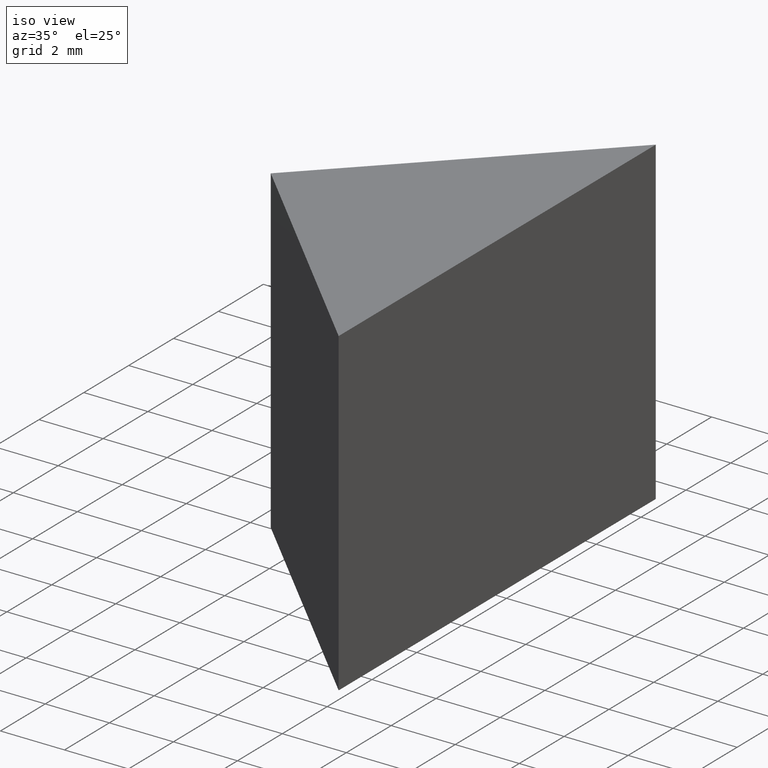
[diagram: clean part render]
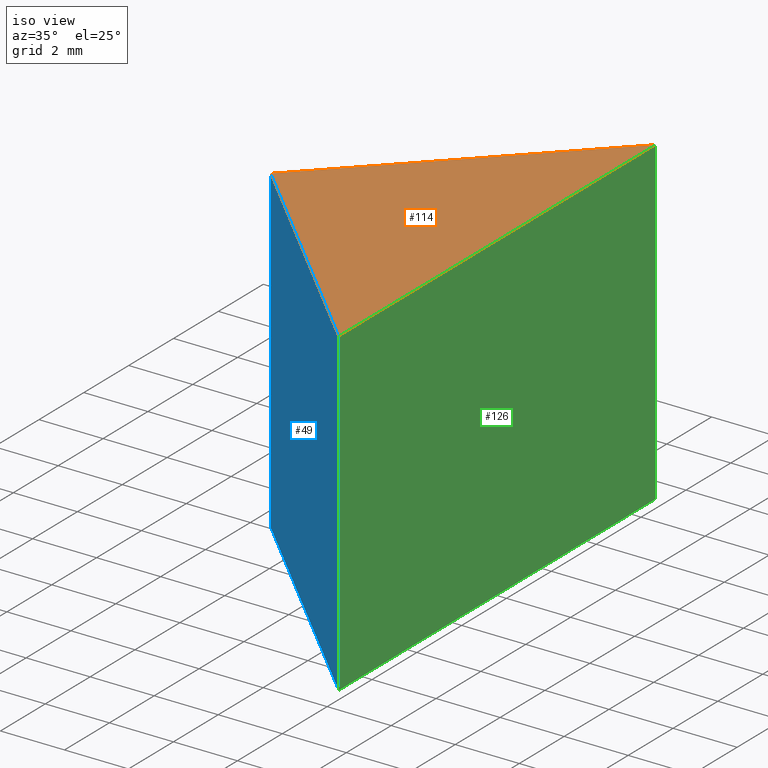
[diagram: same view with three faces highlighted in distinct colors, each labeled with its STEP entity id]
A machine part, iso view with three faces highlighted in distinct colors.
Their STEP definitions:

[orange] entity #114 — the highlighted planar face has unit normal (-0, 0, 1).
#5 = PLANE ( 'NONE',  #163 ) ;
#6 = LINE ( 'NONE', #116, #88 ) ;
#15 = EDGE_CURVE ( 'NONE', #71, #56, #142, .T. ) ;
#18 = DIRECTION ( 'NONE',  ( -0.0000000000000000000, 0.0000000000000000000, 1.000000000000000000 ) ) ;
#24 = CARTESIAN_POINT ( 'NONE',  ( 118.0244077170553100, 20.48031729380264600, 10.00000000000000000 ) ) ;
#39 = EDGE_CURVE ( 'NONE', #56, #102, #6, .T. ) ;
#53 = EDGE_CURVE ( 'NONE', #102, #71, #150, .T. ) ;
#56 = VERTEX_POINT ( 'NONE', #111 ) ;
#66 = VECTOR ( 'NONE', #131, 1000.000000000000000 ) ;
#71 = VERTEX_POINT ( 'NONE', #24 ) ;
#77 = CARTESIAN_POINT ( 'NONE',  ( 110.9533399051898500, 27.55138510566812500, 10.00000000000000000 ) ) ;
#78 = DIRECTION ( 'NONE',  ( -0.7071067811865486800, -0.7071067811865464600, -0.0000000000000000000 ) ) ;
#88 = VECTOR ( 'NONE', #78, 999.9999999999998900 ) ;
#90 = CARTESIAN_POINT ( 'NONE',  ( 0.0000000000000000000, 0.0000000000000000000, 10.00000000000000000 ) ) ;
#102 = VERTEX_POINT ( 'NONE', #77 ) ;
#111 = CARTESIAN_POINT ( 'NONE',  ( 118.0244077170553400, 34.62245291753359300, 10.00000000000000000 ) ) ;
#112 = FACE_OUTER_BOUND ( 'NONE', #140, .T. ) ;
#114 = ADVANCED_FACE ( 'NONE', ( #112 ), #5, .T. ) ;
#116 = CARTESIAN_POINT ( 'NONE',  ( 110.9533399051898500, 27.55138510566812500, 10.00000000000000000 ) ) ;
#124 = ORIENTED_EDGE ( 'NONE', *, *, #39, .T. ) ;
#129 = ORIENTED_EDGE ( 'NONE', *, *, #53, .T. ) ;
#131 = DIRECTION ( 'NONE',  ( 1.962615573354719300E-015, 1.000000000000000000, 0.0000000000000000000 ) ) ;
#134 = DIRECTION ( 'NONE',  ( 1.000000000000000000, 0.0000000000000000000, 0.0000000000000000000 ) ) ;
#135 = ORIENTED_EDGE ( 'NONE', *, *, #15, .T. ) ;
#140 = EDGE_LOOP ( 'NONE', ( #129, #135, #124 ) ) ;
#142 = LINE ( 'NONE', #146, #66 ) ;
#144 = DIRECTION ( 'NONE',  ( 0.7071067811865468000, -0.7071067811865483500, 0.0000000000000000000 ) ) ;
#146 = CARTESIAN_POINT ( 'NONE',  ( 118.0244077170553100, 20.48031729380264600, 10.00000000000000000 ) ) ;
#150 = LINE ( 'NONE', #155, #169 ) ;
#155 = CARTESIAN_POINT ( 'NONE',  ( 110.9533399051898500, 27.55138510566812500, 10.00000000000000000 ) ) ;
#163 = AXIS2_PLACEMENT_3D ( 'NONE', #90, #18, #134 ) ;
#169 = VECTOR ( 'NONE', #144, 999.9999999999998900 ) ;

[blue] entity #49 — the highlighted planar face has unit normal (0.7071, 0.7071, -0).
#3 = CARTESIAN_POINT ( 'NONE',  ( 110.9533399051898500, 27.55138510566812500, 0.0000000000000000000 ) ) ;
#8 = VERTEX_POINT ( 'NONE', #3 ) ;
#11 = LINE ( 'NONE', #28, #165 ) ;
#14 = CARTESIAN_POINT ( 'NONE',  ( 110.9533399051898500, 27.55138510566812500, 10.00000000000000000 ) ) ;
#24 = CARTESIAN_POINT ( 'NONE',  ( 118.0244077170553100, 20.48031729380264600, 10.00000000000000000 ) ) ;
#27 = ORIENTED_EDGE ( 'NONE', *, *, #33, .T. ) ;
#28 = CARTESIAN_POINT ( 'NONE',  ( 110.9533399051898500, 27.55138510566812500, 0.0000000000000000000 ) ) ;
#30 = DIRECTION ( 'NONE',  ( 0.7071067811865468000, -0.7071067811865483500, 0.0000000000000000000 ) ) ;
#33 = EDGE_CURVE ( 'NONE', #8, #160, #11, .T. ) ;
#40 = EDGE_CURVE ( 'NONE', #71, #160, #47, .T. ) ;
#47 = LINE ( 'NONE', #145, #115 ) ;
#48 = ORIENTED_EDGE ( 'NONE', *, *, #40, .F. ) ;
#49 = ADVANCED_FACE ( 'NONE', ( #84 ), #51, .F. ) ;
#51 = PLANE ( 'NONE',  #55 ) ;
#53 = EDGE_CURVE ( 'NONE', #102, #71, #150, .T. ) ;
#55 = AXIS2_PLACEMENT_3D ( 'NONE', #14, #143, #130 ) ;
#61 = DIRECTION ( 'NONE',  ( -0.0000000000000000000, -0.0000000000000000000, -1.000000000000000000 ) ) ;
#62 = EDGE_CURVE ( 'NONE', #102, #8, #98, .T. ) ;
#71 = VERTEX_POINT ( 'NONE', #24 ) ;
#75 = DIRECTION ( 'NONE',  ( -0.0000000000000000000, -0.0000000000000000000, -1.000000000000000000 ) ) ;
#77 = CARTESIAN_POINT ( 'NONE',  ( 110.9533399051898500, 27.55138510566812500, 10.00000000000000000 ) ) ;
#81 = ORIENTED_EDGE ( 'NONE', *, *, #62, .T. ) ;
#84 = FACE_OUTER_BOUND ( 'NONE', #153, .T. ) ;
#91 = CARTESIAN_POINT ( 'NONE',  ( 110.9533399051898500, 27.55138510566812500, 10.00000000000000000 ) ) ;
#92 = VECTOR ( 'NONE', #75, 1000.000000000000000 ) ;
#98 = LINE ( 'NONE', #91, #92 ) ;
#102 = VERTEX_POINT ( 'NONE', #77 ) ;
#115 = VECTOR ( 'NONE', #61, 1000.000000000000000 ) ;
#123 = CARTESIAN_POINT ( 'NONE',  ( 118.0244077170553100, 20.48031729380264600, 0.0000000000000000000 ) ) ;
#130 = DIRECTION ( 'NONE',  ( -0.7071067811865468000, 0.7071067811865483500, 0.0000000000000000000 ) ) ;
#143 = DIRECTION ( 'NONE',  ( 0.7071067811865483500, 0.7071067811865468000, -0.0000000000000000000 ) ) ;
#144 = DIRECTION ( 'NONE',  ( 0.7071067811865468000, -0.7071067811865483500, 0.0000000000000000000 ) ) ;
#145 = CARTESIAN_POINT ( 'NONE',  ( 118.0244077170553100, 20.48031729380264600, 10.00000000000000000 ) ) ;
#150 = LINE ( 'NONE', #155, #169 ) ;
#153 = EDGE_LOOP ( 'NONE', ( #27, #48, #162, #81 ) ) ;
#155 = CARTESIAN_POINT ( 'NONE',  ( 110.9533399051898500, 27.55138510566812500, 10.00000000000000000 ) ) ;
#160 = VERTEX_POINT ( 'NONE', #123 ) ;
#162 = ORIENTED_EDGE ( 'NONE', *, *, #53, .F. ) ;
#165 = VECTOR ( 'NONE', #30, 999.9999999999998900 ) ;
#169 = VECTOR ( 'NONE', #144, 999.9999999999998900 ) ;

[green] entity #126 — the highlighted planar face has unit normal (-1, 0, 0).
#2 = ORIENTED_EDGE ( 'NONE', *, *, #15, .F. ) ;
#7 = FACE_OUTER_BOUND ( 'NONE', #60, .T. ) ;
#15 = EDGE_CURVE ( 'NONE', #71, #56, #142, .T. ) ;
#23 = ORIENTED_EDGE ( 'NONE', *, *, #40, .T. ) ;
#24 = CARTESIAN_POINT ( 'NONE',  ( 118.0244077170553100, 20.48031729380264600, 10.00000000000000000 ) ) ;
#26 = CARTESIAN_POINT ( 'NONE',  ( 118.0244077170553400, 34.62245291753359300, 0.0000000000000000000 ) ) ;
#31 = CARTESIAN_POINT ( 'NONE',  ( 118.0244077170553100, 20.48031729380264600, 0.0000000000000000000 ) ) ;
#40 = EDGE_CURVE ( 'NONE', #71, #160, #47, .T. ) ;
#44 = VECTOR ( 'NONE', #80, 1000.000000000000000 ) ;
#47 = LINE ( 'NONE', #145, #115 ) ;
#56 = VERTEX_POINT ( 'NONE', #111 ) ;
#60 = EDGE_LOOP ( 'NONE', ( #73, #121, #2, #23 ) ) ;
#61 = DIRECTION ( 'NONE',  ( -0.0000000000000000000, -0.0000000000000000000, -1.000000000000000000 ) ) ;
#65 = DIRECTION ( 'NONE',  ( -1.962615573354719300E-015, -1.000000000000000000, 0.0000000000000000000 ) ) ;
#66 = VECTOR ( 'NONE', #131, 1000.000000000000000 ) ;
#71 = VERTEX_POINT ( 'NONE', #24 ) ;
#73 = ORIENTED_EDGE ( 'NONE', *, *, #125, .T. ) ;
#74 = AXIS2_PLACEMENT_3D ( 'NONE', #119, #147, #65 ) ;
#76 = LINE ( 'NONE', #157, #44 ) ;
#79 = DIRECTION ( 'NONE',  ( 1.962615573354719300E-015, 1.000000000000000000, 0.0000000000000000000 ) ) ;
#80 = DIRECTION ( 'NONE',  ( -0.0000000000000000000, -0.0000000000000000000, -1.000000000000000000 ) ) ;
#93 = PLANE ( 'NONE',  #74 ) ;
#99 = VERTEX_POINT ( 'NONE', #26 ) ;
#109 = VECTOR ( 'NONE', #79, 1000.000000000000000 ) ;
#110 = LINE ( 'NONE', #31, #109 ) ;
#111 = CARTESIAN_POINT ( 'NONE',  ( 118.0244077170553400, 34.62245291753359300, 10.00000000000000000 ) ) ;
#115 = VECTOR ( 'NONE', #61, 1000.000000000000000 ) ;
#117 = EDGE_CURVE ( 'NONE', #56, #99, #76, .T. ) ;
#119 = CARTESIAN_POINT ( 'NONE',  ( 118.0244077170553100, 20.48031729380264600, 10.00000000000000000 ) ) ;
#121 = ORIENTED_EDGE ( 'NONE', *, *, #117, .F. ) ;
#123 = CARTESIAN_POINT ( 'NONE',  ( 118.0244077170553100, 20.48031729380264600, 0.0000000000000000000 ) ) ;
#125 = EDGE_CURVE ( 'NONE', #160, #99, #110, .T. ) ;
#126 = ADVANCED_FACE ( 'NONE', ( #7 ), #93, .F. ) ;
#131 = DIRECTION ( 'NONE',  ( 1.962615573354719300E-015, 1.000000000000000000, 0.0000000000000000000 ) ) ;
#142 = LINE ( 'NONE', #146, #66 ) ;
#145 = CARTESIAN_POINT ( 'NONE',  ( 118.0244077170553100, 20.48031729380264600, 10.00000000000000000 ) ) ;
#146 = CARTESIAN_POINT ( 'NONE',  ( 118.0244077170553100, 20.48031729380264600, 10.00000000000000000 ) ) ;
#147 = DIRECTION ( 'NONE',  ( -1.000000000000000000, 1.962615573354719300E-015, 0.0000000000000000000 ) ) ;
#157 = CARTESIAN_POINT ( 'NONE',  ( 118.0244077170553400, 34.62245291753359300, 10.00000000000000000 ) ) ;
#160 = VERTEX_POINT ( 'NONE', #123 ) ;